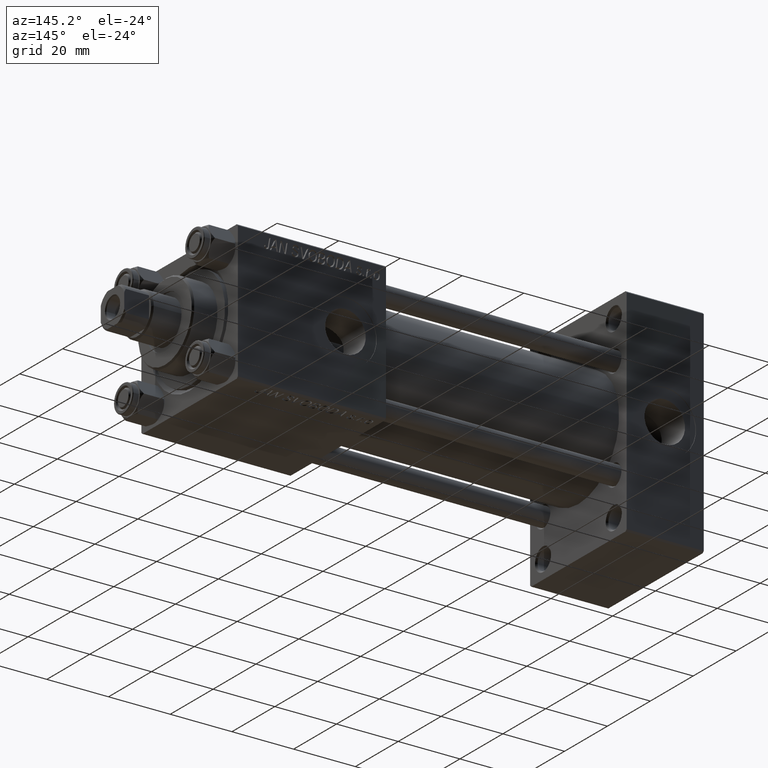
[diagram: clean part render]
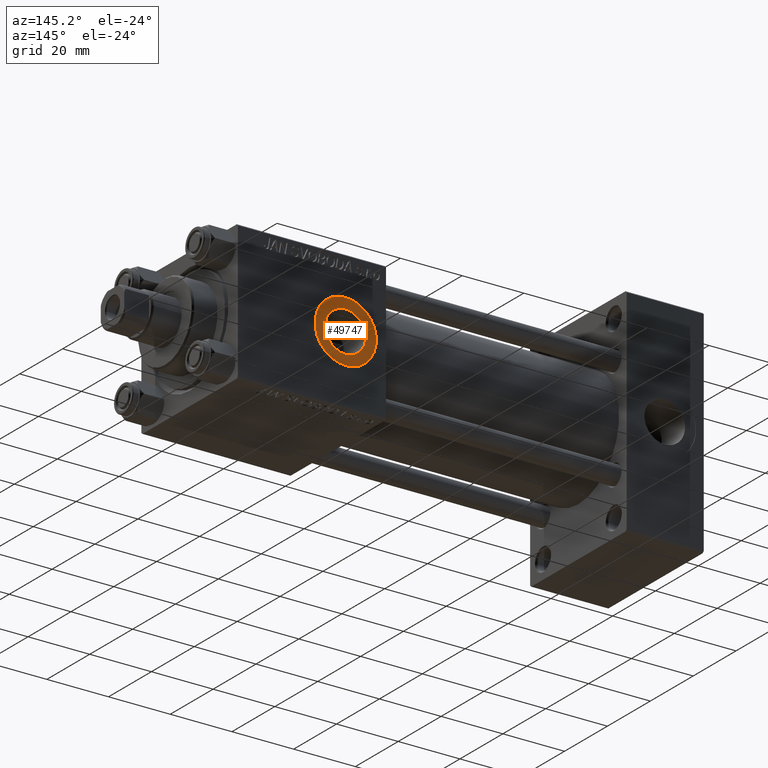
[diagram: same view with one face highlighted and labeled with its STEP entity id]
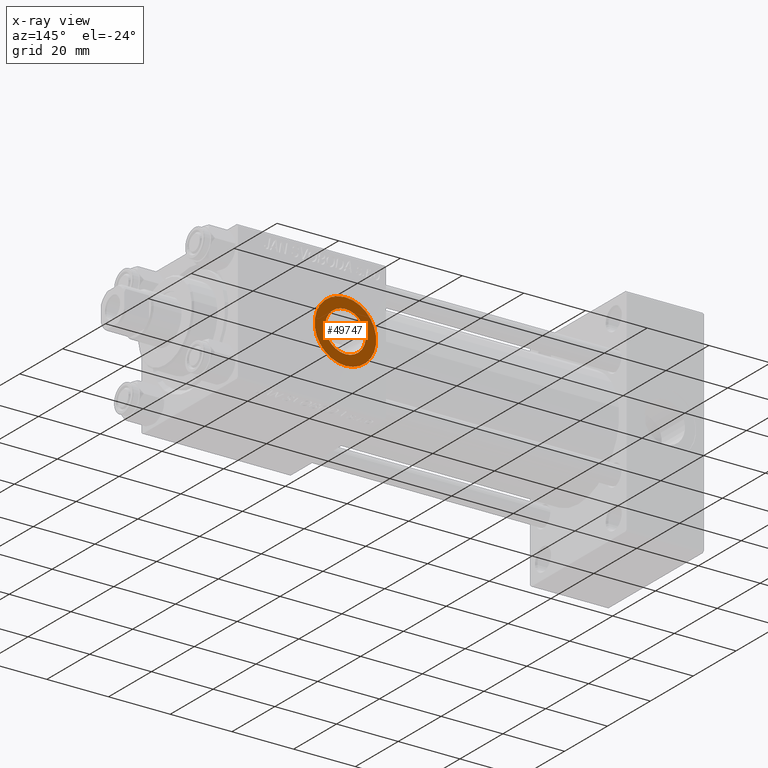
[diagram: x-ray of the same camera — body ghosted, the highlighted face saturated]
A machine part, auxiliary view. The second image highlights one B-rep face of the part: STEP entity #49747.
The next image is the same camera in x-ray: the body ghosted, the highlighted face saturated — about 0% of this face is hidden behind the body in this view.
In plain terms, the highlighted planar face has unit normal (0, 1, 0).
Its self-contained STEP definition (entity closure, byte-faithful):
#81 = EDGE_CURVE ( 'NONE', #15120, #42262, #30005, .T. ) ;
#2077 = DIRECTION ( 'NONE',  ( 0.000000000000000000, 0.000000000000000000, 1.000000000000000000 ) ) ;
#5941 = CARTESIAN_POINT ( 'NONE',  ( 116.0000000000000000, 22.30000000000000426, 0.000000000000000000 ) ) ;
#7042 = AXIS2_PLACEMENT_3D ( 'NONE', #39842, #46925, #43388 ) ;
#7755 = DIRECTION ( 'NONE',  ( 0.000000000000000000, 1.000000000000000000, 0.000000000000000000 ) ) ;
#10726 = DIRECTION ( 'NONE',  ( 0.000000000000000000, 0.000000000000000000, 1.000000000000000000 ) ) ;
#12769 = FACE_OUTER_BOUND ( 'NONE', #42806, .T. ) ;
#13037 = AXIS2_PLACEMENT_3D ( 'NONE', #47633, #17301, #24905 ) ;
#14281 = VERTEX_POINT ( 'NONE', #33647 ) ;
#15120 = VERTEX_POINT ( 'NONE', #46830 ) ;
#16443 = EDGE_LOOP ( 'NONE', ( #49204, #41229 ) ) ;
#17301 = DIRECTION ( 'NONE',  ( 0.000000000000000000, 1.000000000000000000, 0.000000000000000000 ) ) ;
#19870 = CARTESIAN_POINT ( 'NONE',  ( 116.0000000000000000, 22.30000000000000426, 6.580000000000002736 ) ) ;
#24171 = ORIENTED_EDGE ( 'NONE', *, *, #36640, .T. ) ;
#24794 = CIRCLE ( 'NONE', #7042, 6.580000000000002736 ) ;
#24905 = DIRECTION ( 'NONE',  ( 0.000000000000000000, -0.000000000000000000, 1.000000000000000000 ) ) ;
#25900 = DIRECTION ( 'NONE',  ( 0.000000000000000000, 1.000000000000000000, 0.000000000000000000 ) ) ;
#30005 = CIRCLE ( 'NONE', #41300, 6.580000000000002736 ) ;
#33632 = ORIENTED_EDGE ( 'NONE', *, *, #40286, .T. ) ;
#33647 = CARTESIAN_POINT ( 'NONE',  ( 116.0000000000000000, 22.30000000000000426, -9.999999999999994671 ) ) ;
#34494 = CIRCLE ( 'NONE', #47408, 9.999999999999994671 ) ;
#34605 = EDGE_CURVE ( 'NONE', #42262, #15120, #24794, .T. ) ;
#35311 = CIRCLE ( 'NONE', #49048, 9.999999999999994671 ) ;
#36503 = PLANE ( 'NONE',  #13037 ) ;
#36640 = EDGE_CURVE ( 'NONE', #39990, #14281, #34494, .T. ) ;
#36690 = DIRECTION ( 'NONE',  ( 0.000000000000000000, 1.000000000000000000, 0.000000000000000000 ) ) ;
#39842 = CARTESIAN_POINT ( 'NONE',  ( 116.0000000000000000, 22.30000000000000426, 0.000000000000000000 ) ) ;
#39990 = VERTEX_POINT ( 'NONE', #44598 ) ;
#40286 = EDGE_CURVE ( 'NONE', #14281, #39990, #35311, .T. ) ;
#41229 = ORIENTED_EDGE ( 'NONE', *, *, #81, .F. ) ;
#41300 = AXIS2_PLACEMENT_3D ( 'NONE', #44168, #7755, #49217 ) ;
#42262 = VERTEX_POINT ( 'NONE', #19870 ) ;
#42806 = EDGE_LOOP ( 'NONE', ( #24171, #33632 ) ) ;
#43388 = DIRECTION ( 'NONE',  ( 0.000000000000000000, 0.000000000000000000, 1.000000000000000000 ) ) ;
#44097 = FACE_BOUND ( 'NONE', #16443, .T. ) ;
#44168 = CARTESIAN_POINT ( 'NONE',  ( 116.0000000000000000, 22.30000000000000426, 0.000000000000000000 ) ) ;
#44598 = CARTESIAN_POINT ( 'NONE',  ( 116.0000000000000000, 22.30000000000000426, 9.999999999999994671 ) ) ;
#46830 = CARTESIAN_POINT ( 'NONE',  ( 116.0000000000000000, 22.30000000000000426, -6.580000000000002736 ) ) ;
#46925 = DIRECTION ( 'NONE',  ( 0.000000000000000000, 1.000000000000000000, 0.000000000000000000 ) ) ;
#47408 = AXIS2_PLACEMENT_3D ( 'NONE', #5941, #25900, #10726 ) ;
#47633 = CARTESIAN_POINT ( 'NONE',  ( 116.0000000000000000, 22.30000000000000426, 0.000000000000000000 ) ) ;
#48071 = CARTESIAN_POINT ( 'NONE',  ( 116.0000000000000000, 22.30000000000000426, 0.000000000000000000 ) ) ;
#49048 = AXIS2_PLACEMENT_3D ( 'NONE', #48071, #36690, #2077 ) ;
#49204 = ORIENTED_EDGE ( 'NONE', *, *, #34605, .F. ) ;
#49217 = DIRECTION ( 'NONE',  ( 0.000000000000000000, 0.000000000000000000, 1.000000000000000000 ) ) ;
#49747 = ADVANCED_FACE ( 'NONE', ( #44097, #12769 ), #36503, .T. ) ;